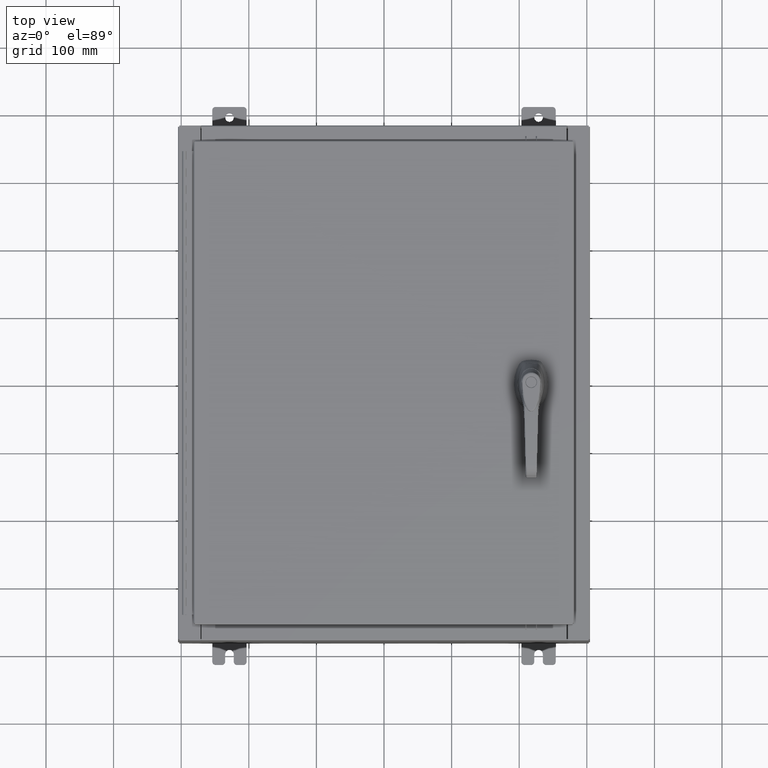
[diagram: clean part render]
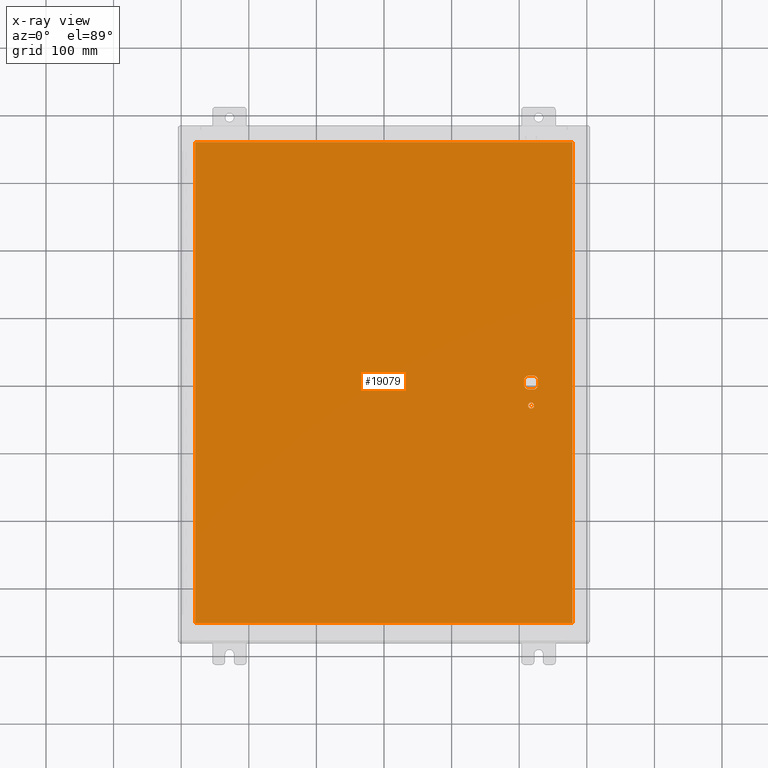
[diagram: x-ray — body ghosted, one internal face saturated and labeled with its STEP entity id]
A machine part, top view, then the same camera in x-ray: the body is ghosted and one INTERNAL B-rep face — a face not visible from any outside direction — is saturated and labeled: STEP entity #19079.
In plain terms, the highlighted planar face has unit normal (0, 0, -1).
Its self-contained STEP definition (entity closure, byte-faithful):
#429 = LINE ( 'NONE', #93654, #96632 ) ;
#694 = DIRECTION ( 'NONE',  ( -0.0000000000000000000, -0.0000000000000000000, 1.000000000000000000 ) ) ;
#2954 = EDGE_CURVE ( 'NONE', #35636, #16986, #29621, .T. ) ;
#4171 = ORIENTED_EDGE ( 'NONE', *, *, #47523, .T. ) ;
#4311 = LINE ( 'NONE', #16542, #46670 ) ;
#4599 = CARTESIAN_POINT ( 'NONE',  ( 0.0000000000000000000, -0.4029999999999252000, -0.07470000000000003000 ) ) ;
#4684 = VECTOR ( 'NONE', #54009, 39.37007874015748100 ) ;
#5042 = AXIS2_PLACEMENT_3D ( 'NONE', #80921, #41779, #80524 ) ;
#5264 = VERTEX_POINT ( 'NONE', #87176 ) ;
#5913 = CARTESIAN_POINT ( 'NONE',  ( -10.99030000000000000, -14.00629999999999600, -0.07470000000000000300 ) ) ;
#8012 = VERTEX_POINT ( 'NONE', #104108 ) ;
#10269 = VECTOR ( 'NONE', #58614, 39.37007874015748100 ) ;
#11219 = EDGE_CURVE ( 'NONE', #66034, #5264, #73872, .T. ) ;
#12844 = DIRECTION ( 'NONE',  ( 0.0000000000000000000, -1.000000000000000000, 0.0000000000000000000 ) ) ;
#14005 = CARTESIAN_POINT ( 'NONE',  ( 8.577999999999999400, -1.338000000000000100, -0.07470000000000003000 ) ) ;
#14598 = PLANE ( 'NONE',  #30861 ) ;
#15224 = FACE_BOUND ( 'NONE', #56196, .T. ) ;
#16542 = CARTESIAN_POINT ( 'NONE',  ( 8.175000000000073500, 0.0000000000000000000, -0.07470000000000003000 ) ) ;
#16986 = VERTEX_POINT ( 'NONE', #37568 ) ;
#17619 = DIRECTION ( 'NONE',  ( 1.000000000000000000, -0.0000000000000000000, -0.0000000000000000000 ) ) ;
#17962 = CIRCLE ( 'NONE', #63476, 0.4499999999999156900 ) ;
#19079 = ADVANCED_FACE ( 'NONE', ( #44907, #63242, #15224 ), #14598, .T. ) ;
#22998 = AXIS2_PLACEMENT_3D ( 'NONE', #31587, #94887, #40684 ) ;
#23071 = DIRECTION ( 'NONE',  ( -1.000000000000000000, 0.0000000000000000000, 0.0000000000000000000 ) ) ;
#23301 = CARTESIAN_POINT ( 'NONE',  ( 8.577999999999999400, 0.0000000000000000000, -0.07470000000000003000 ) ) ;
#23658 = DIRECTION ( 'NONE',  ( 0.0000000000000000000, 0.0000000000000000000, -1.000000000000000000 ) ) ;
#24776 = VERTEX_POINT ( 'NONE', #35394 ) ;
#24831 = VERTEX_POINT ( 'NONE', #35782 ) ;
#25476 = AXIS2_PLACEMENT_3D ( 'NONE', #54721, #694, #63837 ) ;
#29621 = CIRCLE ( 'NONE', #5042, 0.4499999999999156900 ) ;
#30861 = AXIS2_PLACEMENT_3D ( 'NONE', #86528, #23658, #86919 ) ;
#31587 = CARTESIAN_POINT ( 'NONE',  ( 8.577999999999999400, 0.0000000000000000000, -0.07470000000000003000 ) ) ;
#32355 = CARTESIAN_POINT ( 'NONE',  ( 10.99030000000000000, -14.00629999999999800, -0.07470000000000019700 ) ) ;
#32390 = DIRECTION ( 'NONE',  ( -1.000000000000000000, 0.0000000000000000000, 0.0000000000000000000 ) ) ;
#34269 = VECTOR ( 'NONE', #45436, 39.37007874015748100 ) ;
#34286 = LINE ( 'NONE', #4599, #10269 ) ;
#34447 = CARTESIAN_POINT ( 'NONE',  ( 10.99030000000000000, 14.00629999999999800, -0.07470000000000000300 ) ) ;
#34544 = EDGE_CURVE ( 'NONE', #69457, #16986, #76823, .T. ) ;
#35394 = CARTESIAN_POINT ( 'NONE',  ( 8.406499999999999400, -1.338000000000000100, -0.07470000000000003000 ) ) ;
#35636 = VERTEX_POINT ( 'NONE', #101670 ) ;
#35782 = CARTESIAN_POINT ( 'NONE',  ( 8.377772629243690300, -0.4029999999999250300, -0.07470000000000003000 ) ) ;
#36078 = CARTESIAN_POINT ( 'NONE',  ( 8.175000000000073500, -0.2002273707563079800, -0.07470000000000003000 ) ) ;
#37568 = CARTESIAN_POINT ( 'NONE',  ( 8.980999999999925300, -0.2002273707563075900, -0.07470000000000003000 ) ) ;
#38419 = CARTESIAN_POINT ( 'NONE',  ( 10.99030000000000000, -14.00629999999999800, -0.07470000000000000300 ) ) ;
#39172 = CIRCLE ( 'NONE', #48869, 0.4499999999999156900 ) ;
#39447 = DIRECTION ( 'NONE',  ( -1.000000000000000000, -0.0000000000000000000, -0.0000000000000000000 ) ) ;
#40684 = DIRECTION ( 'NONE',  ( -1.000000000000000000, 0.0000000000000000000, 0.0000000000000000000 ) ) ;
#41779 = DIRECTION ( 'NONE',  ( -0.0000000000000000000, -0.0000000000000000000, 1.000000000000000000 ) ) ;
#43357 = CARTESIAN_POINT ( 'NONE',  ( 8.749500000000001200, -1.338000000000000100, -0.07470000000000003000 ) ) ;
#43467 = CIRCLE ( 'NONE', #22998, 0.4499999999999156900 ) ;
#44230 = LINE ( 'NONE', #47165, #113701 ) ;
#44907 = FACE_BOUND ( 'NONE', #78782, .T. ) ;
#45436 = DIRECTION ( 'NONE',  ( -1.000000000000000000, 0.0000000000000000000, 0.0000000000000000000 ) ) ;
#45449 = ORIENTED_EDGE ( 'NONE', *, *, #72934, .F. ) ;
#45616 = EDGE_CURVE ( 'NONE', #116996, #57437, #46046, .T. ) ;
#46046 = LINE ( 'NONE', #103053, #115501 ) ;
#46670 = VECTOR ( 'NONE', #52842, 39.37007874015748100 ) ;
#47165 = CARTESIAN_POINT ( 'NONE',  ( -10.99029999999999600, -14.00629999999999800, -0.07470000000000019700 ) ) ;
#47523 = EDGE_CURVE ( 'NONE', #110516, #24776, #48758, .T. ) ;
#47721 = EDGE_LOOP ( 'NONE', ( #45449, #83995, #97619, #85987 ) ) ;
#48758 = CIRCLE ( 'NONE', #25476, 0.1715000000000011500 ) ;
#48869 = AXIS2_PLACEMENT_3D ( 'NONE', #23301, #86553, #32390 ) ;
#49364 = ORIENTED_EDGE ( 'NONE', *, *, #102515, .T. ) ;
#50655 = DIRECTION ( 'NONE',  ( -0.0000000000000000000, -0.0000000000000000000, 1.000000000000000000 ) ) ;
#50682 = CARTESIAN_POINT ( 'NONE',  ( -10.99030000000000000, 14.00629999999999800, -0.07470000000000000300 ) ) ;
#51289 = EDGE_CURVE ( 'NONE', #24776, #110516, #99182, .T. ) ;
#52842 = DIRECTION ( 'NONE',  ( 0.0000000000000000000, -1.000000000000000000, 0.0000000000000000000 ) ) ;
#54009 = DIRECTION ( 'NONE',  ( 2.728745808672812900E-015, -1.000000000000000000, 0.0000000000000000000 ) ) ;
#54721 = CARTESIAN_POINT ( 'NONE',  ( 8.577999999999999400, -1.338000000000000100, -0.07470000000000003000 ) ) ;
#56196 = EDGE_LOOP ( 'NONE', ( #61868, #86283, #49364, #80623, #116910, #117063, #87810, #84979 ) ) ;
#57437 = VERTEX_POINT ( 'NONE', #5913 ) ;
#58614 = DIRECTION ( 'NONE',  ( 1.000000000000000000, 0.0000000000000000000, 0.0000000000000000000 ) ) ;
#58934 = CARTESIAN_POINT ( 'NONE',  ( 8.980999999999925300, 0.2002273707563080300, -0.07470000000000003000 ) ) ;
#59487 = LINE ( 'NONE', #32355, #113503 ) ;
#61796 = EDGE_CURVE ( 'NONE', #57437, #112471, #44230, .T. ) ;
#61868 = ORIENTED_EDGE ( 'NONE', *, *, #2954, .T. ) ;
#62817 = ORIENTED_EDGE ( 'NONE', *, *, #51289, .T. ) ;
#63242 = FACE_OUTER_BOUND ( 'NONE', #47721, .T. ) ;
#63476 = AXIS2_PLACEMENT_3D ( 'NONE', #104963, #50655, #114108 ) ;
#63837 = DIRECTION ( 'NONE',  ( -1.000000000000000000, 0.0000000000000000000, 0.0000000000000000000 ) ) ;
#66034 = VERTEX_POINT ( 'NONE', #99632 ) ;
#66761 = EDGE_CURVE ( 'NONE', #66963, #24831, #17962, .T. ) ;
#66963 = VERTEX_POINT ( 'NONE', #36078 ) ;
#69457 = VERTEX_POINT ( 'NONE', #58934 ) ;
#71475 = EDGE_CURVE ( 'NONE', #96195, #116996, #429, .T. ) ;
#72934 = EDGE_CURVE ( 'NONE', #112471, #96195, #59487, .T. ) ;
#73872 = LINE ( 'NONE', #90555, #34269 ) ;
#74642 = EDGE_CURVE ( 'NONE', #5264, #8012, #43467, .T. ) ;
#76823 = LINE ( 'NONE', #90481, #4684 ) ;
#77238 = DIRECTION ( 'NONE',  ( -0.0000000000000000000, -0.0000000000000000000, 1.000000000000000000 ) ) ;
#78782 = EDGE_LOOP ( 'NONE', ( #4171, #62817 ) ) ;
#80524 = DIRECTION ( 'NONE',  ( -1.000000000000000000, 1.776356839400251300E-015, 0.0000000000000000000 ) ) ;
#80623 = ORIENTED_EDGE ( 'NONE', *, *, #11219, .T. ) ;
#80921 = CARTESIAN_POINT ( 'NONE',  ( 8.577999999999999400, 0.0000000000000000000, -0.07470000000000003000 ) ) ;
#82644 = EDGE_CURVE ( 'NONE', #8012, #66963, #4311, .T. ) ;
#83995 = ORIENTED_EDGE ( 'NONE', *, *, #61796, .F. ) ;
#84979 = ORIENTED_EDGE ( 'NONE', *, *, #107291, .T. ) ;
#85987 = ORIENTED_EDGE ( 'NONE', *, *, #71475, .F. ) ;
#86283 = ORIENTED_EDGE ( 'NONE', *, *, #34544, .F. ) ;
#86528 = CARTESIAN_POINT ( 'NONE',  ( 0.0000000000000000000, 0.0000000000000000000, -0.07470000000000000300 ) ) ;
#86553 = DIRECTION ( 'NONE',  ( -0.0000000000000000000, -0.0000000000000000000, 1.000000000000000000 ) ) ;
#86919 = DIRECTION ( 'NONE',  ( -1.000000000000000000, 0.0000000000000000000, -0.0000000000000000000 ) ) ;
#87176 = CARTESIAN_POINT ( 'NONE',  ( 8.377772629243690300, 0.4029999999999252000, -0.07470000000000003000 ) ) ;
#87810 = ORIENTED_EDGE ( 'NONE', *, *, #66761, .T. ) ;
#88485 = AXIS2_PLACEMENT_3D ( 'NONE', #14005, #77238, #23071 ) ;
#90481 = CARTESIAN_POINT ( 'NONE',  ( 8.980999999999925300, 2.450686610769032800E-014, -0.07470000000000003000 ) ) ;
#90555 = CARTESIAN_POINT ( 'NONE',  ( 0.0000000000000000000, 0.4029999999999252000, -0.07470000000000003000 ) ) ;
#93654 = CARTESIAN_POINT ( 'NONE',  ( 10.99030000000000000, 14.00629999999999800, -0.07470000000000019700 ) ) ;
#94887 = DIRECTION ( 'NONE',  ( -0.0000000000000000000, -0.0000000000000000000, 1.000000000000000000 ) ) ;
#96195 = VERTEX_POINT ( 'NONE', #34447 ) ;
#96632 = VECTOR ( 'NONE', #39447, 39.37007874015748100 ) ;
#97619 = ORIENTED_EDGE ( 'NONE', *, *, #45616, .F. ) ;
#99182 = CIRCLE ( 'NONE', #88485, 0.1715000000000011500 ) ;
#99632 = CARTESIAN_POINT ( 'NONE',  ( 8.778227370756310300, 0.4029999999999250300, -0.07470000000000003000 ) ) ;
#101670 = CARTESIAN_POINT ( 'NONE',  ( 8.778227370756310300, -0.4029999999999252000, -0.07470000000000003000 ) ) ;
#102515 = EDGE_CURVE ( 'NONE', #69457, #66034, #39172, .T. ) ;
#103053 = CARTESIAN_POINT ( 'NONE',  ( -10.99030000000000000, 14.00630000000000100, -0.07470000000000019700 ) ) ;
#104108 = CARTESIAN_POINT ( 'NONE',  ( 8.175000000000073500, 0.2002273707563080300, -0.07470000000000003000 ) ) ;
#104785 = DIRECTION ( 'NONE',  ( 0.0000000000000000000, 1.000000000000000000, 0.0000000000000000000 ) ) ;
#104963 = CARTESIAN_POINT ( 'NONE',  ( 8.577999999999999400, 0.0000000000000000000, -0.07470000000000003000 ) ) ;
#107291 = EDGE_CURVE ( 'NONE', #24831, #35636, #34286, .T. ) ;
#110516 = VERTEX_POINT ( 'NONE', #43357 ) ;
#112471 = VERTEX_POINT ( 'NONE', #38419 ) ;
#113503 = VECTOR ( 'NONE', #104785, 39.37007874015748100 ) ;
#113701 = VECTOR ( 'NONE', #17619, 39.37007874015748100 ) ;
#114108 = DIRECTION ( 'NONE',  ( -1.000000000000000000, 8.881784197001256300E-016, 0.0000000000000000000 ) ) ;
#115501 = VECTOR ( 'NONE', #12844, 39.37007874015748100 ) ;
#116910 = ORIENTED_EDGE ( 'NONE', *, *, #74642, .T. ) ;
#116996 = VERTEX_POINT ( 'NONE', #50682 ) ;
#117063 = ORIENTED_EDGE ( 'NONE', *, *, #82644, .T. ) ;